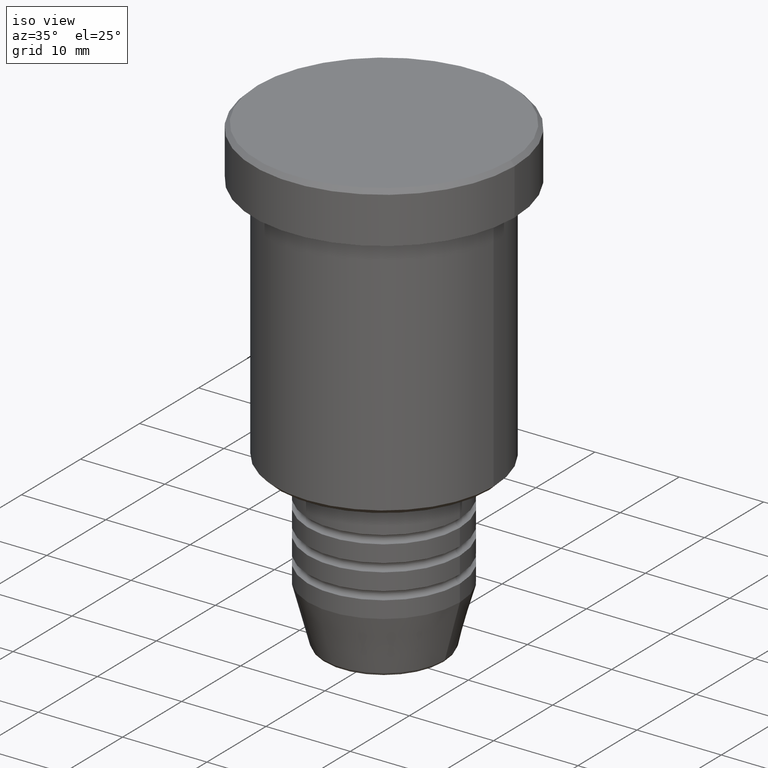
[diagram: clean part render]
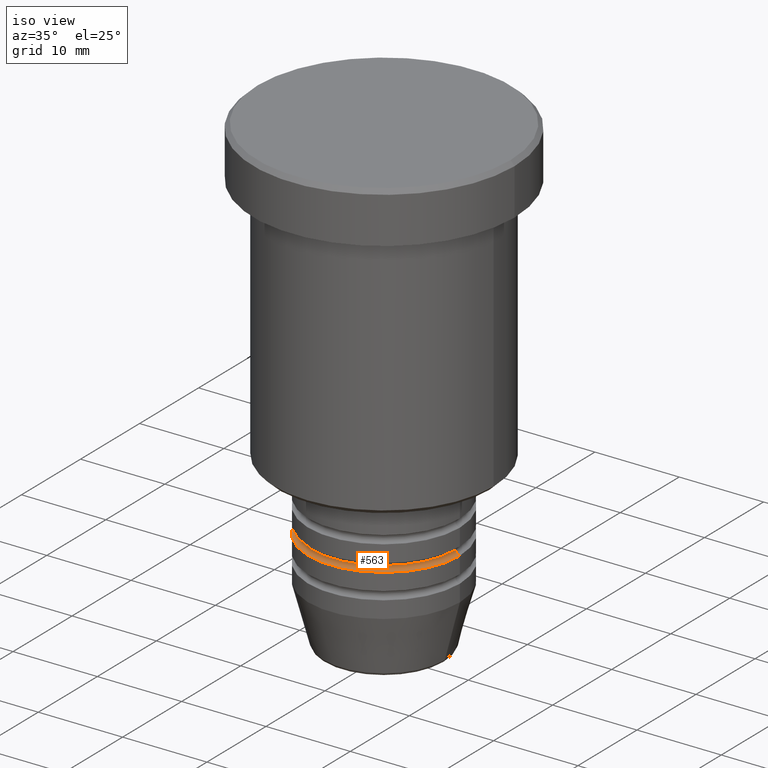
[diagram: same view with one face highlighted and labeled with its STEP entity id]
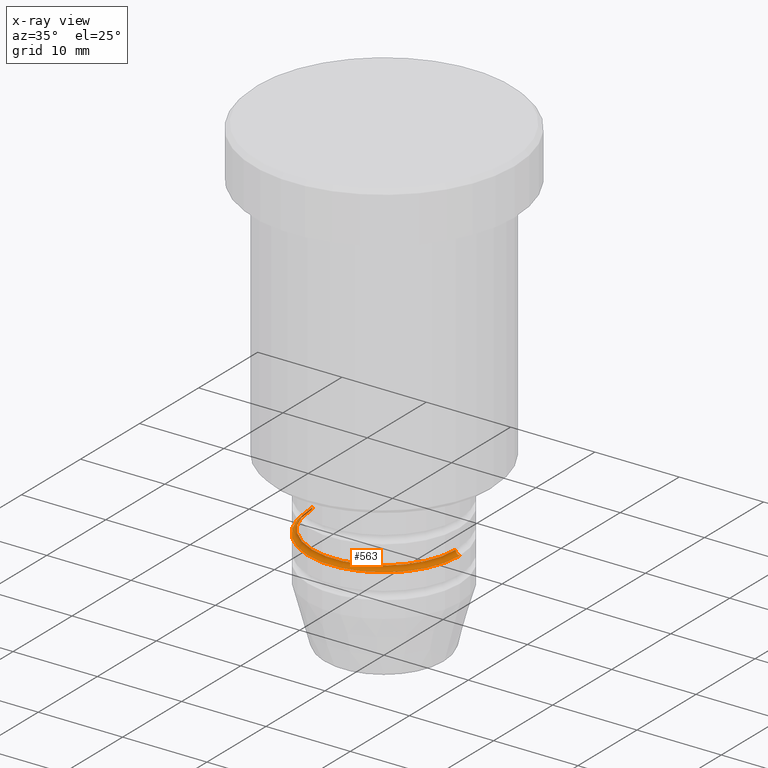
[diagram: x-ray of the same camera — body ghosted, the highlighted face saturated]
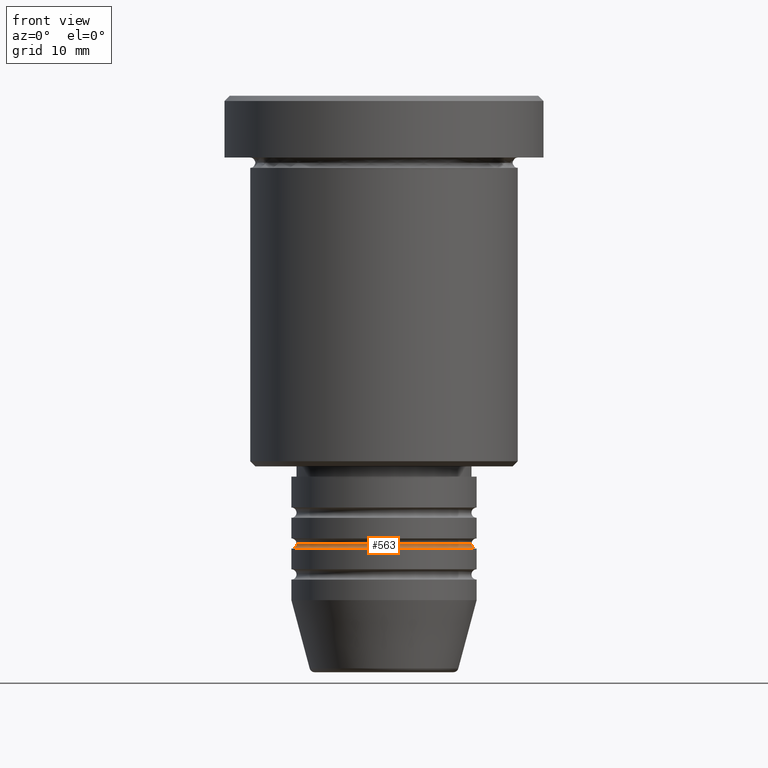
[diagram: same view with one face highlighted and labeled with its STEP entity id]
A machine part, iso view. The second image highlights one B-rep face of the part: STEP entity #563.
The next image is the same camera in x-ray: the body ghosted, the highlighted face saturated — about 2% of this face is hidden behind the body in this view.
A second angle (front view) of the same face is appended — the face is thin or edge-on in the first view.
In plain terms, the highlighted toroidal blend (fillet) surface has major radius 9 mm and minor (blend) radius 0.5 mm.
Its self-contained STEP definition (entity closure, byte-faithful):
#62 = EDGE_CURVE ( 'NONE', #375, #78, #1158, .T. ) ;
#73 = CIRCLE ( 'NONE', #1140, 0.5000000000000004441 ) ;
#78 = VERTEX_POINT ( 'NONE', #741 ) ;
#88 = VERTEX_POINT ( 'NONE', #392 ) ;
#107 = ORIENTED_EDGE ( 'NONE', *, *, #154, .T. ) ;
#154 = EDGE_CURVE ( 'NONE', #708, #375, #1080, .T. ) ;
#190 = AXIS2_PLACEMENT_3D ( 'NONE', #672, #386, #1017 ) ;
#205 = CARTESIAN_POINT ( 'NONE',  ( -8.500000000000000000, 1.071565949253933927E-15, -43.49999999999998579 ) ) ;
#232 = TOROIDAL_SURFACE ( 'NONE', #1061, 9.000000000000001776, 0.5000000000000000000 ) ;
#304 = AXIS2_PLACEMENT_3D ( 'NONE', #1150, #685, #339 ) ;
#313 = EDGE_CURVE ( 'NONE', #88, #78, #73, .T. ) ;
#325 = EDGE_CURVE ( 'NONE', #708, #88, #1059, .T. ) ;
#328 = FACE_OUTER_BOUND ( 'NONE', #1117, .T. ) ;
#339 = DIRECTION ( 'NONE',  ( -1.000000000000000000, 1.224646799147353454E-16, 0.000000000000000000 ) ) ;
#375 = VERTEX_POINT ( 'NONE', #1169 ) ;
#386 = DIRECTION ( 'NONE',  ( -0.000000000000000000, -0.000000000000000000, 1.000000000000000000 ) ) ;
#387 = ORIENTED_EDGE ( 'NONE', *, *, #313, .F. ) ;
#392 = CARTESIAN_POINT ( 'NONE',  ( 8.500000000000000000, 0.000000000000000000, -43.49999999999998579 ) ) ;
#417 = DIRECTION ( 'NONE',  ( 0.000000000000000000, -1.000000000000000000, 0.000000000000000000 ) ) ;
#433 = DIRECTION ( 'NONE',  ( -0.000000000000000000, -0.000000000000000000, 1.000000000000000000 ) ) ;
#509 = CARTESIAN_POINT ( 'NONE',  ( 9.000000000000001776, 0.000000000000000000, -43.49999999999998579 ) ) ;
#529 = CARTESIAN_POINT ( 'NONE',  ( 0.000000000000000000, 0.000000000000000000, -43.49999999999998579 ) ) ;
#553 = AXIS2_PLACEMENT_3D ( 'NONE', #529, #714, #631 ) ;
#563 = ADVANCED_FACE ( 'NONE', ( #328 ), #232, .F. ) ;
#595 = DIRECTION ( 'NONE',  ( 1.000000000000000000, 0.000000000000000000, 0.000000000000000000 ) ) ;
#631 = DIRECTION ( 'NONE',  ( 1.000000000000000000, 0.000000000000000000, 0.000000000000000000 ) ) ;
#672 = CARTESIAN_POINT ( 'NONE',  ( 0.000000000000000000, 0.000000000000000000, -43.99999999999998579 ) ) ;
#685 = DIRECTION ( 'NONE',  ( 1.224646799147353207E-16, 1.000000000000000000, 0.000000000000000000 ) ) ;
#708 = VERTEX_POINT ( 'NONE', #205 ) ;
#714 = DIRECTION ( 'NONE',  ( -0.000000000000000000, -0.000000000000000000, 1.000000000000000000 ) ) ;
#741 = CARTESIAN_POINT ( 'NONE',  ( 9.000000000000000000, 0.000000000000000000, -43.99999999999998579 ) ) ;
#768 = DIRECTION ( 'NONE',  ( 0.000000000000000000, 0.000000000000000000, -1.000000000000000000 ) ) ;
#1017 = DIRECTION ( 'NONE',  ( 1.000000000000000000, 0.000000000000000000, 0.000000000000000000 ) ) ;
#1051 = CARTESIAN_POINT ( 'NONE',  ( 0.000000000000000000, 0.000000000000000000, -43.49999999999998579 ) ) ;
#1059 = CIRCLE ( 'NONE', #553, 8.500000000000000000 ) ;
#1061 = AXIS2_PLACEMENT_3D ( 'NONE', #1051, #433, #595 ) ;
#1080 = CIRCLE ( 'NONE', #304, 0.5000000000000004441 ) ;
#1103 = ORIENTED_EDGE ( 'NONE', *, *, #325, .F. ) ;
#1117 = EDGE_LOOP ( 'NONE', ( #1103, #107, #1176, #387 ) ) ;
#1140 = AXIS2_PLACEMENT_3D ( 'NONE', #509, #417, #768 ) ;
#1150 = CARTESIAN_POINT ( 'NONE',  ( -9.000000000000001776, 1.102182119232617911E-15, -43.49999999999998579 ) ) ;
#1158 = CIRCLE ( 'NONE', #190, 9.000000000000000000 ) ;
#1169 = CARTESIAN_POINT ( 'NONE',  ( -9.000000000000000000, 1.102182119232617714E-15, -43.99999999999998579 ) ) ;
#1176 = ORIENTED_EDGE ( 'NONE', *, *, #62, .T. ) ;